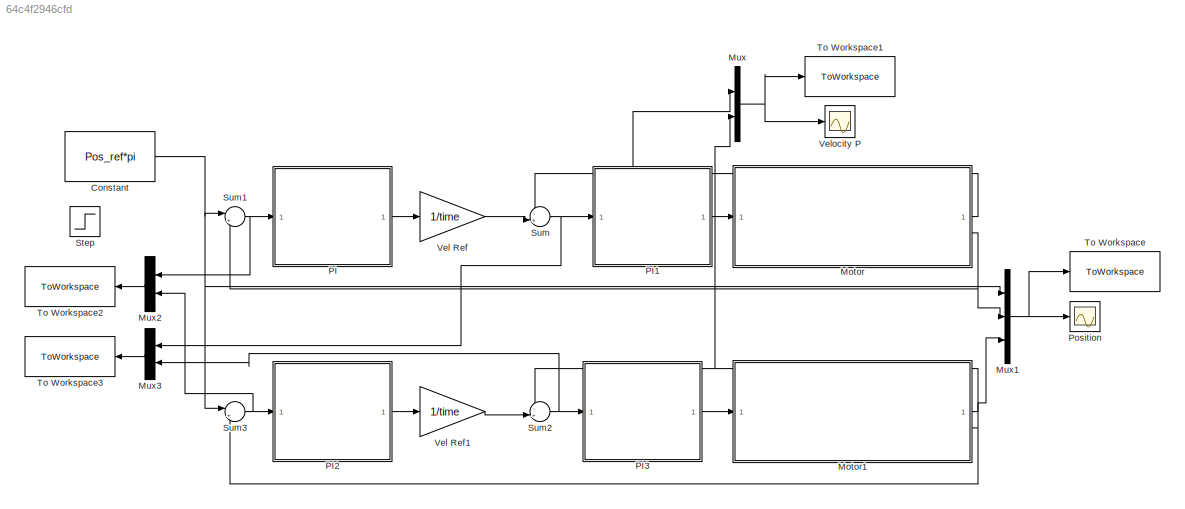
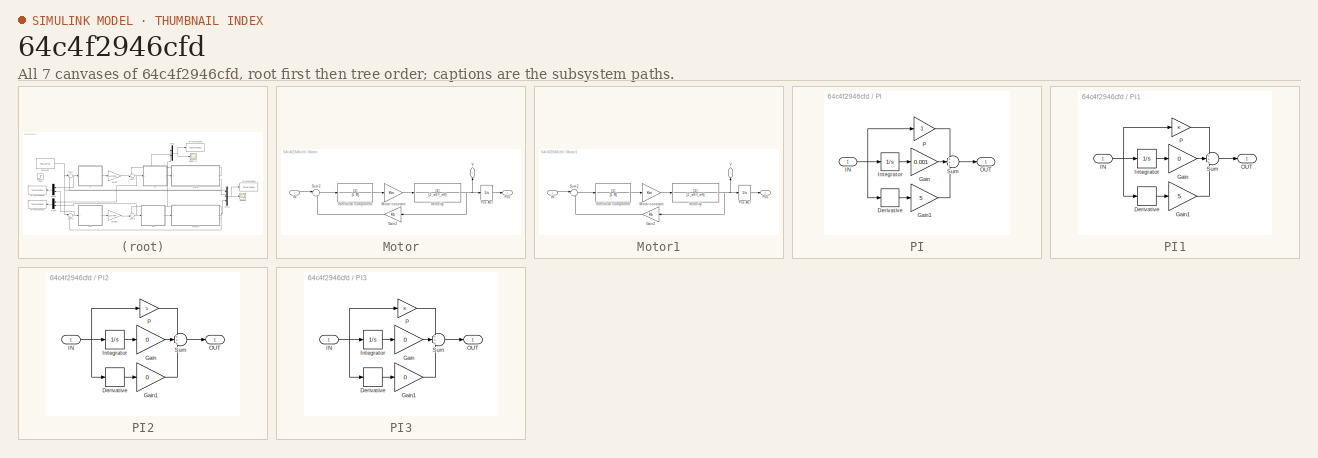
[diagram: thumbnail index - all 7 canvases of the model, root first then tree order]
MODEL slx_64c4f2946cfd
KIND model
CONFIG AbsTol = auto
CONFIG EnableMultiTasking = off
CONFIG FixedStep = auto
CONFIG MaxStep = auto
CONFIG MinStep = auto
CONFIG RelTol = 1e-3
CONFIG SampleTimeConstraint = Unconstrained
CONFIG SolverName = VariableStepAuto
CONFIG StartTime = 0.0
CONFIG StopTime = 300
BLOCK [Constant] Constant
  Value = Pos_ref*pi
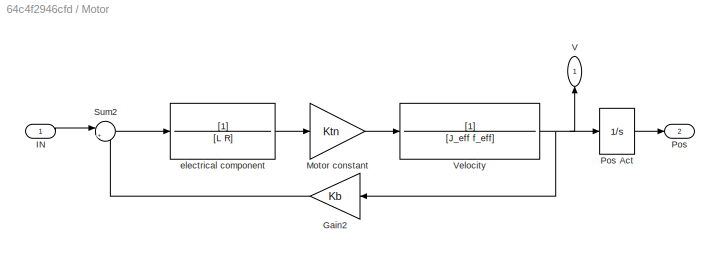
BLOCK [SubSystem] Motor
BLOCK [Gain] Motor/Gain2
  Gain = Kb
BLOCK [Inport] Motor/IN
  IconDisplay = Signal name
BLOCK [Gain] Motor/Motor constant
  Gain = Ktn
BLOCK [Outport] Motor/Pos
  IconDisplay = Port number and signal name
  Port = 2
BLOCK [Integrator] Motor/Pos Act
BLOCK [Sum] Motor/Sum2
  Inputs = |+-
BLOCK [Outport] Motor/V
  IconDisplay = Port number and signal name
  NameLocation = right
BLOCK [TransferFcn] Motor/Velocity
  Denominator = [J_eff f_eff]
BLOCK [TransferFcn] Motor/electrical component
  Denominator = [L R]
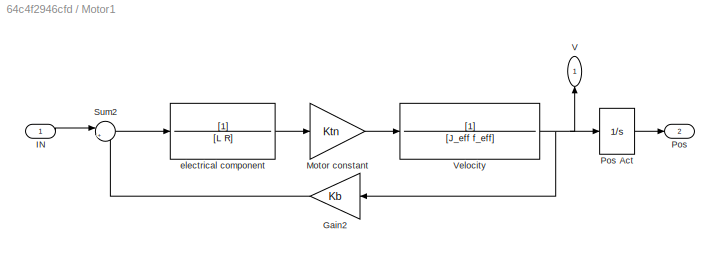
BLOCK [SubSystem] Motor1
BLOCK [Gain] Motor1/Gain2
  Gain = Kb
BLOCK [Inport] Motor1/IN
  IconDisplay = Signal name
BLOCK [Gain] Motor1/Motor constant
  Gain = Ktn
BLOCK [Outport] Motor1/Pos
  IconDisplay = Port number and signal name
  Port = 2
BLOCK [Integrator] Motor1/Pos Act
BLOCK [Sum] Motor1/Sum2
  Inputs = |+-
BLOCK [Outport] Motor1/V
  IconDisplay = Port number and signal name
  NameLocation = right
BLOCK [TransferFcn] Motor1/Velocity
  Denominator = [J_eff f_eff]
BLOCK [TransferFcn] Motor1/electrical component
  Denominator = [L R]
BLOCK [Mux] Mux
  DisplayOption = bar
  Inputs = 2
BLOCK [Mux] Mux1
  DisplayOption = bar
  Inputs = 3
BLOCK [Mux] Mux2
  DisplayOption = bar
  Inputs = 2
BLOCK [Mux] Mux3
  DisplayOption = bar
  Inputs = 2
BLOCK [SubSystem] PI
BLOCK [Derivative] PI/Derivative
BLOCK [Gain] PI/Gain
  Gain = 0.001
BLOCK [Gain] PI/Gain1
  Gain = 5
BLOCK [Inport] PI/IN
  IconDisplay = Signal name
BLOCK [Integrator] PI/Integrator
BLOCK [Outport] PI/OUT
  IconDisplay = Signal name
BLOCK [Gain] PI/P
  Gain = 3
BLOCK [Sum] PI/Sum
  Inputs = +++
BLOCK [SubSystem] PI1
BLOCK [Derivative] PI1/Derivative
BLOCK [Gain] PI1/Gain
  Gain = 0
BLOCK [Gain] PI1/Gain1
  Gain = 5
BLOCK [Inport] PI1/IN
  IconDisplay = Signal name
BLOCK [Integrator] PI1/Integrator
BLOCK [Outport] PI1/OUT
  IconDisplay = Signal name
BLOCK [Gain] PI1/P
BLOCK [Sum] PI1/Sum
  Inputs = +++
BLOCK [SubSystem] PI2
BLOCK [Derivative] PI2/Derivative
BLOCK [Gain] PI2/Gain
  Gain = 0
BLOCK [Gain] PI2/Gain1
  Gain = 0
BLOCK [Inport] PI2/IN
  IconDisplay = Signal name
BLOCK [Integrator] PI2/Integrator
BLOCK [Outport] PI2/OUT
  IconDisplay = Signal name
BLOCK [Gain] PI2/P
  Gain = 5
BLOCK [Sum] PI2/Sum
  Inputs = +++
BLOCK [SubSystem] PI3
BLOCK [Derivative] PI3/Derivative
BLOCK [Gain] PI3/Gain
  Gain = 0
BLOCK [Gain] PI3/Gain1
  Gain = 0
BLOCK [Inport] PI3/IN
  IconDisplay = Signal name
BLOCK [Integrator] PI3/Integrator
BLOCK [Outport] PI3/OUT
  IconDisplay = Signal name
BLOCK [Gain] PI3/P
BLOCK [Sum] PI3/Sum
  Inputs = +++
BLOCK [Scope] Position
  Floating = off
  NumInputPorts = 1
  ScopeSpecificationString = Simulink.scopes.TimeScopeBlockCfg('CurrentConfiguration', extmgr.ConfigurationSet(extmgr.Configuration('Core','General UI',true),extmgr.Configuration('Core','Source UI',true),extmgr.Configuration('Sources','WiredSimulink',true,'DataLoggingVariableName','ScopeData1'),extmgr.Configuration('Visuals','Time Domain',true,'SerializedDisplays',{struct('MinYLimReal','-1.25','MaxYLimReal','11.25001','YLabel...<+1524ch>
BLOCK [Step] Step
  After = 500
  Before = 1000
  SampleTime = 0
  Time = 250
BLOCK [Sum] Sum
  Inputs = -+|
BLOCK [Sum] Sum1
  Inputs = |+-
BLOCK [Sum] Sum2
  Inputs = -+|
BLOCK [Sum] Sum3
  Inputs = |+-
BLOCK [ToWorkspace] To Workspace
  FixptAsFi = on
  MaxDataPoints = inf
  SampleTime = -1
  SaveFormat = Timeseries
  VariableName = Pos
BLOCK [ToWorkspace] To Workspace1
  FixptAsFi = on
  MaxDataPoints = inf
  SampleTime = -1
  SaveFormat = Timeseries
  VariableName = vel
BLOCK [ToWorkspace] To Workspace2
  FixptAsFi = on
  MaxDataPoints = inf
  SampleTime = -1
  SaveFormat = Timeseries
  VariableName = err_pos
BLOCK [ToWorkspace] To Workspace3
  FixptAsFi = on
  MaxDataPoints = inf
  SampleTime = -1
  SaveFormat = Timeseries
  VariableName = err_vel
BLOCK [Gain] Vel Ref
  Gain = 1/time
BLOCK [Gain] Vel Ref1
  Gain = 1/time
BLOCK [Scope] Velocity P
  Floating = off
  NumInputPorts = 1
  ScopeSpecificationString = Simulink.scopes.TimeScopeBlockCfg('CurrentConfiguration', extmgr.ConfigurationSet(extmgr.Configuration('Core','General UI',true),extmgr.Configuration('Core','Source UI',true),extmgr.Configuration('Sources','WiredSimulink',true),extmgr.Configuration('Visuals','Time Domain',true,'SerializedDisplays',{struct('MinYLimReal','-0.12918','MaxYLimReal','1.14301','YLabelReal','','MinYLimMag','0.00000','MaxY...<+1541ch>
NET Constant:1 -> Mux1:1, Sum1:1, Sum3:1
LINE Motor/Gain2:1 -> Motor/Sum2:2
LINE Motor/IN:1 -> Motor/Sum2:1
LINE Motor/Motor constant:1 -> Motor/Velocity:1
LINE Motor/Pos Act:1 -> Motor/Pos:1
LINE Motor/Sum2:1 -> Motor/electrical component:1
NET Motor/Velocity:1 -> Motor/Gain2:1, Motor/Pos Act:1, Motor/V:1
LINE Motor/electrical component:1 -> Motor/Motor constant:1
LINE Motor1/Gain2:1 -> Motor1/Sum2:2
LINE Motor1/IN:1 -> Motor1/Sum2:1
LINE Motor1/Motor constant:1 -> Motor1/Velocity:1
LINE Motor1/Pos Act:1 -> Motor1/Pos:1
LINE Motor1/Sum2:1 -> Motor1/electrical component:1
NET Motor1/Velocity:1 -> Motor1/Gain2:1, Motor1/Pos Act:1, Motor1/V:1
LINE Motor1/electrical component:1 -> Motor1/Motor constant:1
NET Motor1:1 -> Mux:2, Sum2:1
NET Motor1:2 -> Mux1:3, Sum3:2
NET Motor:1 -> Mux:1, Sum:1
NET Motor:2 -> Mux1:2, Sum1:2
NET Mux1:1 -> Position:1, To Workspace:1
LINE Mux2:1 -> To Workspace2:1
LINE Mux3:1 -> To Workspace3:1
NET Mux:1 -> To Workspace1:1, Velocity P:1
LINE PI/Derivative:1 -> PI/Gain1:1
LINE PI/Gain1:1 -> PI/Sum:3
LINE PI/Gain:1 -> PI/Sum:2
NET PI/IN:1 -> PI/Derivative:1, PI/Integrator:1, PI/P:1
LINE PI/Integrator:1 -> PI/Gain:1
LINE PI/P:1 -> PI/Sum:1
LINE PI/Sum:1 -> PI/OUT:1
LINE PI1/Derivative:1 -> PI1/Gain1:1
LINE PI1/Gain1:1 -> PI1/Sum:3
LINE PI1/Gain:1 -> PI1/Sum:2
NET PI1/IN:1 -> PI1/Derivative:1, PI1/Integrator:1, PI1/P:1
LINE PI1/Integrator:1 -> PI1/Gain:1
LINE PI1/P:1 -> PI1/Sum:1
LINE PI1/Sum:1 -> PI1/OUT:1
LINE PI1:1 -> Motor:1
LINE PI2/Derivative:1 -> PI2/Gain1:1
LINE PI2/Gain1:1 -> PI2/Sum:3
LINE PI2/Gain:1 -> PI2/Sum:2
NET PI2/IN:1 -> PI2/Derivative:1, PI2/Integrator:1, PI2/P:1
LINE PI2/Integrator:1 -> PI2/Gain:1
LINE PI2/P:1 -> PI2/Sum:1
LINE PI2/Sum:1 -> PI2/OUT:1
LINE PI2:1 -> Vel Ref1:1
LINE PI3/Derivative:1 -> PI3/Gain1:1
LINE PI3/Gain1:1 -> PI3/Sum:3
LINE PI3/Gain:1 -> PI3/Sum:2
NET PI3/IN:1 -> PI3/Derivative:1, PI3/Integrator:1, PI3/P:1
LINE PI3/Integrator:1 -> PI3/Gain:1
LINE PI3/P:1 -> PI3/Sum:1
LINE PI3/Sum:1 -> PI3/OUT:1
LINE PI3:1 -> Motor1:1
LINE PI:1 -> Vel Ref:1
NET Sum1:1 -> Mux2:1, PI:1
NET Sum2:1 -> Mux3:2, PI3:1
NET Sum3:1 -> Mux2:2, PI2:1
NET Sum:1 -> Mux3:1, PI1:1
LINE Vel Ref1:1 -> Sum2:2
LINE Vel Ref:1 -> Sum:2
note: NET lines group one-source signal fan-out (src -> all destinations, sorted); 1:1 wires keep LINE
